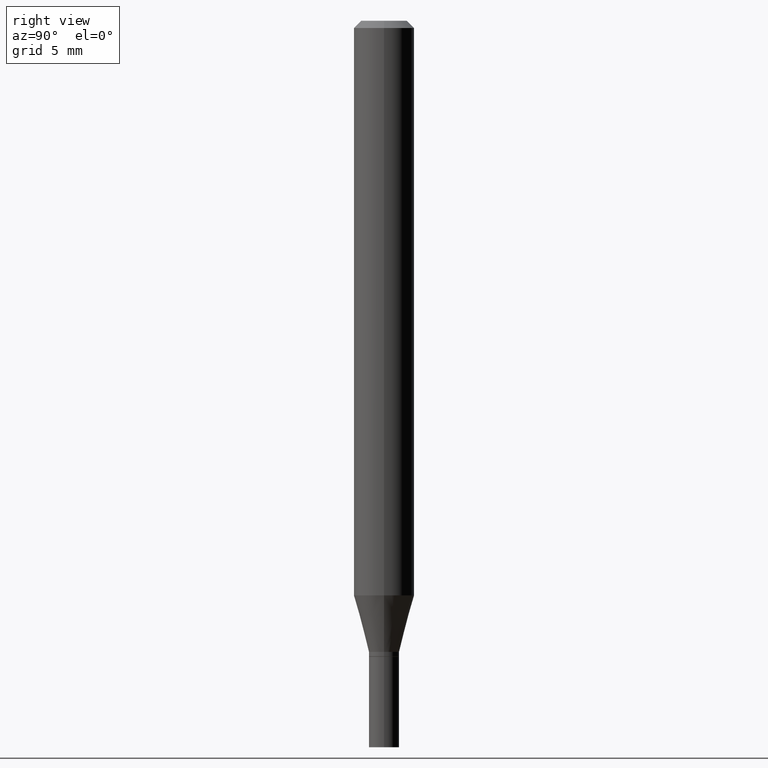
[diagram: clean part render]
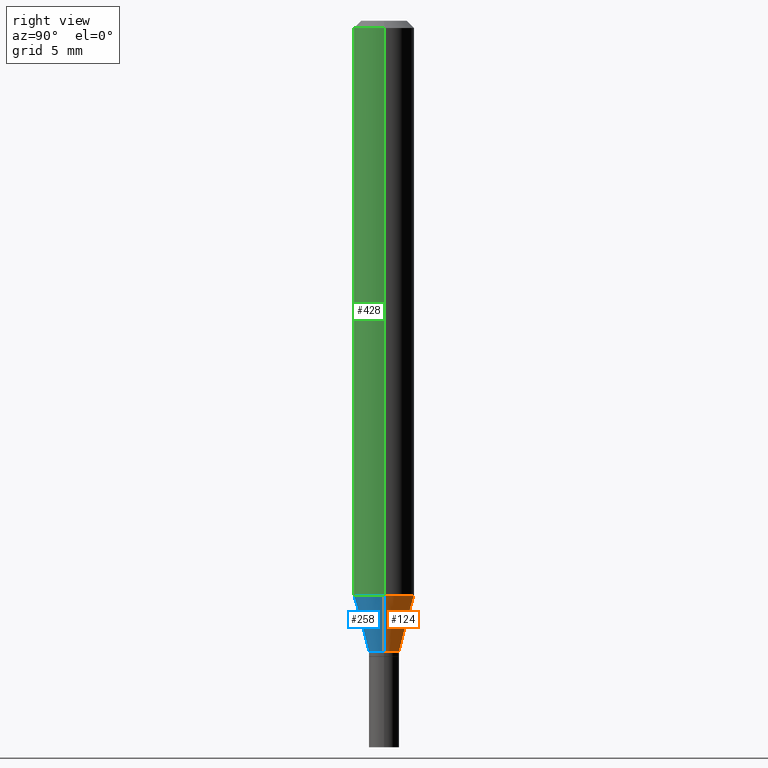
[diagram: same view with three faces highlighted in distinct colors, each labeled with its STEP entity id]
A machine part, right view with three faces highlighted in distinct colors.
Their STEP definitions:

[orange] entity #124 — the highlighted conical surface has half-angle 15 deg.
#6 = ORIENTED_EDGE ( 'NONE', *, *, #456, .T. ) ;
#15 = CIRCLE ( 'NONE', #345, 0.03124999999999994102 ) ;
#18 = CARTESIAN_POINT ( 'NONE',  ( 2.901239172177741338E-29, -4.142200629817580672E-15, -1.186373412263472593 ) ) ;
#19 = DIRECTION ( 'NONE',  ( -2.445468806185136597E-29, 3.491481338843145583E-15, 1.000000000000000000 ) ) ;
#68 = VECTOR ( 'NONE', #273, 39.37007874015747433 ) ;
#70 = LINE ( 'NONE', #325, #429 ) ;
#91 = ORIENTED_EDGE ( 'NONE', *, *, #361, .F. ) ;
#111 = EDGE_CURVE ( 'NONE', #291, #321, #15, .T. ) ;
#124 = ADVANCED_FACE ( 'NONE', ( #199 ), #335, .T. ) ;
#131 = CARTESIAN_POINT ( 'NONE',  ( 0.06250000000000000000, -4.578635797172973130E-15, -1.186373412263472593 ) ) ;
#139 = ORIENTED_EDGE ( 'NONE', *, *, #111, .T. ) ;
#146 = CIRCLE ( 'NONE', #288, 0.06250000000000000000 ) ;
#199 = FACE_OUTER_BOUND ( 'NONE', #446, .T. ) ;
#212 = CARTESIAN_POINT ( 'NONE',  ( -0.03124999999999994102, -4.327355579587587641E-15, -1.302999999999999936 ) ) ;
#268 = DIRECTION ( 'NONE',  ( 1.000000000000000000, -6.982962677686276177E-15, 0.000000000000000000 ) ) ;
#271 = CARTESIAN_POINT ( 'NONE',  ( 3.186445854459233039E-29, -4.549400184512618949E-15, -1.302999999999999936 ) ) ;
#273 = DIRECTION ( 'NONE',  ( -0.2588190451025214611, 5.211531920934551042E-15, 0.9659258262890682012 ) ) ;
#277 = CARTESIAN_POINT ( 'NONE',  ( 0.03124999999999994102, -4.767617768190314784E-15, -1.302999999999999936 ) ) ;
#279 = DIRECTION ( 'NONE',  ( -2.445468806185136597E-29, 3.491481338843145583E-15, 1.000000000000000000 ) ) ;
#288 = AXIS2_PLACEMENT_3D ( 'NONE', #18, #279, #401 ) ;
#290 = CARTESIAN_POINT ( 'NONE',  ( -0.03124999999999994102, -4.012733499777553243E-15, -1.302999999999999936 ) ) ;
#291 = VERTEX_POINT ( 'NONE', #277 ) ;
#305 = DIRECTION ( 'NONE',  ( -2.445468806185136597E-29, 3.491481338843145583E-15, 1.000000000000000000 ) ) ;
#314 = ORIENTED_EDGE ( 'NONE', *, *, #328, .F. ) ;
#321 = VERTEX_POINT ( 'NONE', #290 ) ;
#325 = CARTESIAN_POINT ( 'NONE',  ( 0.03124999999999994102, -4.767617768190314784E-15, -1.302999999999999936 ) ) ;
#328 = EDGE_CURVE ( 'NONE', #291, #389, #70, .T. ) ;
#335 = CONICAL_SURFACE ( 'NONE', #442, 0.03124999999999994102, 0.2617993877991501295 ) ;
#345 = AXIS2_PLACEMENT_3D ( 'NONE', #447, #19, #268 ) ;
#351 = LINE ( 'NONE', #212, #68 ) ;
#361 = EDGE_CURVE ( 'NONE', #389, #436, #146, .T. ) ;
#376 = DIRECTION ( 'NONE',  ( 1.000000000000000000, -6.982962677686276177E-15, 0.000000000000000000 ) ) ;
#389 = VERTEX_POINT ( 'NONE', #131 ) ;
#401 = DIRECTION ( 'NONE',  ( 1.000000000000000000, -6.982962677686262766E-15, 0.000000000000000000 ) ) ;
#429 = VECTOR ( 'NONE', #433, 39.37007874015747433 ) ;
#433 = DIRECTION ( 'NONE',  ( 0.2588190451025214611, 1.565188264969621573E-15, 0.9659258262890682012 ) ) ;
#436 = VERTEX_POINT ( 'NONE', #452 ) ;
#442 = AXIS2_PLACEMENT_3D ( 'NONE', #271, #305, #376 ) ;
#446 = EDGE_LOOP ( 'NONE', ( #139, #6, #91, #314 ) ) ;
#447 = CARTESIAN_POINT ( 'NONE',  ( 3.186445854459233039E-29, -4.549400184512618949E-15, -1.302999999999999936 ) ) ;
#452 = CARTESIAN_POINT ( 'NONE',  ( -0.06250000000000000000, -3.698111419967518845E-15, -1.186373412263472593 ) ) ;
#456 = EDGE_CURVE ( 'NONE', #321, #436, #351, .T. ) ;

[blue] entity #258 — the highlighted conical surface has half-angle 15 deg.
#49 = DIRECTION ( 'NONE',  ( -2.445468806185136597E-29, 3.491481338843145583E-15, 1.000000000000000000 ) ) ;
#58 = CIRCLE ( 'NONE', #89, 0.03124999999999994102 ) ;
#68 = VECTOR ( 'NONE', #273, 39.37007874015747433 ) ;
#70 = LINE ( 'NONE', #325, #429 ) ;
#86 = ORIENTED_EDGE ( 'NONE', *, *, #328, .T. ) ;
#89 = AXIS2_PLACEMENT_3D ( 'NONE', #99, #97, #421 ) ;
#97 = DIRECTION ( 'NONE',  ( -2.445468806185136597E-29, 3.491481338843145583E-15, 1.000000000000000000 ) ) ;
#99 = CARTESIAN_POINT ( 'NONE',  ( 3.186445854459233039E-29, -4.549400184512618949E-15, -1.302999999999999936 ) ) ;
#121 = DIRECTION ( 'NONE',  ( 1.000000000000000000, -6.982962677686262766E-15, 0.000000000000000000 ) ) ;
#131 = CARTESIAN_POINT ( 'NONE',  ( 0.06250000000000000000, -4.578635797172973130E-15, -1.186373412263472593 ) ) ;
#144 = ORIENTED_EDGE ( 'NONE', *, *, #456, .F. ) ;
#160 = CONICAL_SURFACE ( 'NONE', #272, 0.03124999999999994102, 0.2617993877991501295 ) ;
#167 = FACE_OUTER_BOUND ( 'NONE', #260, .T. ) ;
#169 = EDGE_CURVE ( 'NONE', #436, #389, #437, .T. ) ;
#212 = CARTESIAN_POINT ( 'NONE',  ( -0.03124999999999994102, -4.327355579587587641E-15, -1.302999999999999936 ) ) ;
#231 = AXIS2_PLACEMENT_3D ( 'NONE', #371, #49, #121 ) ;
#258 = ADVANCED_FACE ( 'NONE', ( #167 ), #160, .T. ) ;
#260 = EDGE_LOOP ( 'NONE', ( #144, #462, #86, #284 ) ) ;
#272 = AXIS2_PLACEMENT_3D ( 'NONE', #312, #458, #315 ) ;
#273 = DIRECTION ( 'NONE',  ( -0.2588190451025214611, 5.211531920934551042E-15, 0.9659258262890682012 ) ) ;
#277 = CARTESIAN_POINT ( 'NONE',  ( 0.03124999999999994102, -4.767617768190314784E-15, -1.302999999999999936 ) ) ;
#284 = ORIENTED_EDGE ( 'NONE', *, *, #169, .F. ) ;
#290 = CARTESIAN_POINT ( 'NONE',  ( -0.03124999999999994102, -4.012733499777553243E-15, -1.302999999999999936 ) ) ;
#291 = VERTEX_POINT ( 'NONE', #277 ) ;
#312 = CARTESIAN_POINT ( 'NONE',  ( 3.186445854459233039E-29, -4.549400184512618949E-15, -1.302999999999999936 ) ) ;
#315 = DIRECTION ( 'NONE',  ( 1.000000000000000000, -6.982962677686276177E-15, 0.000000000000000000 ) ) ;
#321 = VERTEX_POINT ( 'NONE', #290 ) ;
#325 = CARTESIAN_POINT ( 'NONE',  ( 0.03124999999999994102, -4.767617768190314784E-15, -1.302999999999999936 ) ) ;
#328 = EDGE_CURVE ( 'NONE', #291, #389, #70, .T. ) ;
#351 = LINE ( 'NONE', #212, #68 ) ;
#371 = CARTESIAN_POINT ( 'NONE',  ( 2.901239172177741338E-29, -4.142200629817580672E-15, -1.186373412263472593 ) ) ;
#389 = VERTEX_POINT ( 'NONE', #131 ) ;
#409 = EDGE_CURVE ( 'NONE', #321, #291, #58, .T. ) ;
#421 = DIRECTION ( 'NONE',  ( 1.000000000000000000, -6.982962677686276177E-15, 0.000000000000000000 ) ) ;
#429 = VECTOR ( 'NONE', #433, 39.37007874015747433 ) ;
#433 = DIRECTION ( 'NONE',  ( 0.2588190451025214611, 1.565188264969621573E-15, 0.9659258262890682012 ) ) ;
#436 = VERTEX_POINT ( 'NONE', #452 ) ;
#437 = CIRCLE ( 'NONE', #231, 0.06250000000000000000 ) ;
#452 = CARTESIAN_POINT ( 'NONE',  ( -0.06250000000000000000, -3.698111419967518845E-15, -1.186373412263472593 ) ) ;
#456 = EDGE_CURVE ( 'NONE', #321, #436, #351, .T. ) ;
#458 = DIRECTION ( 'NONE',  ( -2.445468806185136597E-29, 3.491481338843145583E-15, 1.000000000000000000 ) ) ;
#462 = ORIENTED_EDGE ( 'NONE', *, *, #409, .T. ) ;

[green] entity #428 — the highlighted cylindrical surface (edge-blend (fillet) strip) has radius 1.5875 mm, axis along (-0, 0, 1).
#31 = ORIENTED_EDGE ( 'NONE', *, *, #169, .T. ) ;
#49 = DIRECTION ( 'NONE',  ( -2.445468806185136597E-29, 3.491481338843145583E-15, 1.000000000000000000 ) ) ;
#67 = DIRECTION ( 'NONE',  ( 1.000000000000000000, -6.982962677686266711E-15, 4.876176775795935793E-29 ) ) ;
#103 = CARTESIAN_POINT ( 'NONE',  ( -0.06250000000000000000, 4.440892098500626162E-16, -3.074334431409316114E-30 ) ) ;
#121 = DIRECTION ( 'NONE',  ( 1.000000000000000000, -6.982962677686262766E-15, 0.000000000000000000 ) ) ;
#127 = CARTESIAN_POINT ( 'NONE',  ( 0.06250000000000000000, -4.364351673553916694E-16, 3.047610484872459871E-30 ) ) ;
#130 = FACE_OUTER_BOUND ( 'NONE', #383, .T. ) ;
#131 = CARTESIAN_POINT ( 'NONE',  ( 0.06250000000000000000, -4.578635797172973130E-15, -1.186373412263472593 ) ) ;
#137 = DIRECTION ( 'NONE',  ( -2.445468806185136597E-29, 3.491481338843145583E-15, 1.000000000000000000 ) ) ;
#140 = ORIENTED_EDGE ( 'NONE', *, *, #236, .F. ) ;
#141 = EDGE_CURVE ( 'NONE', #389, #434, #444, .T. ) ;
#169 = EDGE_CURVE ( 'NONE', #436, #389, #437, .T. ) ;
#177 = LINE ( 'NONE', #103, #316 ) ;
#206 = EDGE_CURVE ( 'NONE', #436, #430, #177, .T. ) ;
#231 = AXIS2_PLACEMENT_3D ( 'NONE', #371, #49, #121 ) ;
#236 = EDGE_CURVE ( 'NONE', #430, #434, #374, .T. ) ;
#239 = CARTESIAN_POINT ( 'NONE',  ( -0.06250000000000000000, -1.653197215100051457E-15, -0.01499999999999999944 ) ) ;
#242 = DIRECTION ( 'NONE',  ( -2.445468806185136877E-29, 3.491481338843145188E-15, 1.000000000000000000 ) ) ;
#248 = VECTOR ( 'NONE', #307, 39.37007874015748143 ) ;
#274 = ORIENTED_EDGE ( 'NONE', *, *, #206, .F. ) ;
#299 = ORIENTED_EDGE ( 'NONE', *, *, #141, .T. ) ;
#307 = DIRECTION ( 'NONE',  ( -2.445468806185136877E-29, 3.491481338843145188E-15, 1.000000000000000000 ) ) ;
#316 = VECTOR ( 'NONE', #242, 39.37007874015748143 ) ;
#317 = AXIS2_PLACEMENT_3D ( 'NONE', #417, #423, #67 ) ;
#320 = CYLINDRICAL_SURFACE ( 'NONE', #317, 0.06250000000000000000 ) ;
#346 = AXIS2_PLACEMENT_3D ( 'NONE', #453, #137, #385 ) ;
#371 = CARTESIAN_POINT ( 'NONE',  ( 2.901239172177741338E-29, -4.142200629817580672E-15, -1.186373412263472593 ) ) ;
#374 = CIRCLE ( 'NONE', #346, 0.06250000000000000000 ) ;
#383 = EDGE_LOOP ( 'NONE', ( #274, #31, #299, #140 ) ) ;
#385 = DIRECTION ( 'NONE',  ( 1.000000000000000000, -6.982962677686266711E-15, 0.000000000000000000 ) ) ;
#389 = VERTEX_POINT ( 'NONE', #131 ) ;
#417 = CARTESIAN_POINT ( 'NONE',  ( 0.000000000000000000, 0.000000000000000000, 0.000000000000000000 ) ) ;
#423 = DIRECTION ( 'NONE',  ( -2.445468806185136597E-29, 3.491481338843145583E-15, 1.000000000000000000 ) ) ;
#428 = ADVANCED_FACE ( 'NONE', ( #130 ), #320, .T. ) ;
#430 = VERTEX_POINT ( 'NONE', #239 ) ;
#434 = VERTEX_POINT ( 'NONE', #451 ) ;
#436 = VERTEX_POINT ( 'NONE', #452 ) ;
#437 = CIRCLE ( 'NONE', #231, 0.06250000000000000000 ) ;
#444 = LINE ( 'NONE', #127, #248 ) ;
#451 = CARTESIAN_POINT ( 'NONE',  ( 0.06250000000000000000, -4.888073874380388472E-16, -0.01499999999999999944 ) ) ;
#452 = CARTESIAN_POINT ( 'NONE',  ( -0.06250000000000000000, -3.698111419967518845E-15, -1.186373412263472593 ) ) ;
#453 = CARTESIAN_POINT ( 'NONE',  ( 3.668203209277705088E-31, -5.237222008264718399E-17, -0.01499999999999999944 ) ) ;